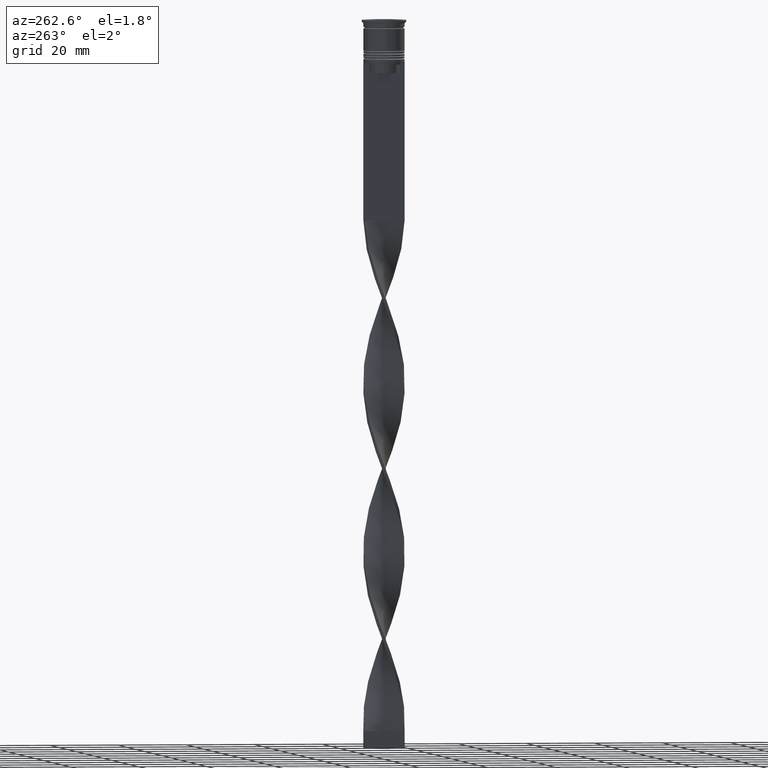
[diagram: clean part render]
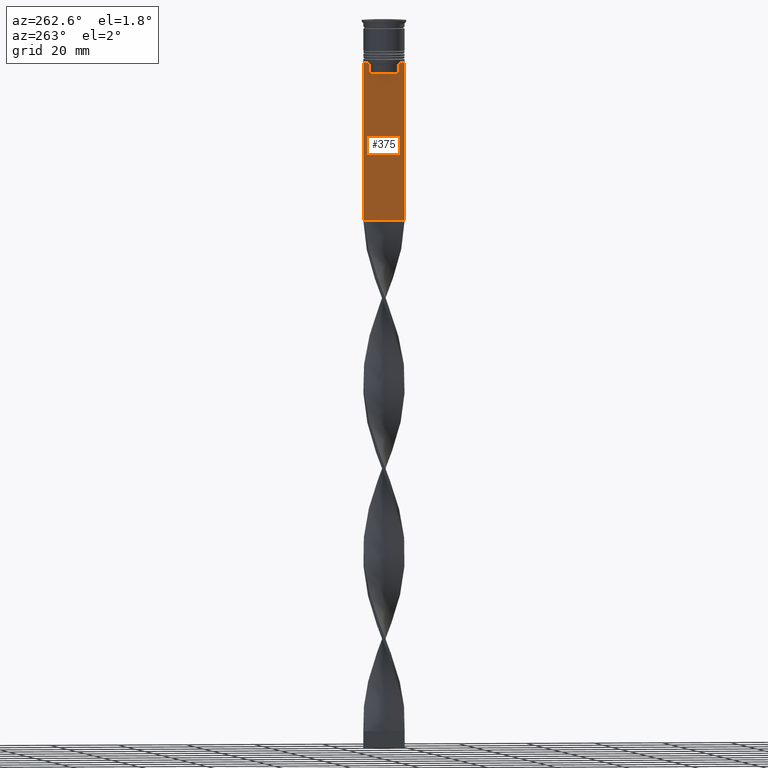
[diagram: same view with one face highlighted and labeled with its STEP entity id]
A machine part, auxiliary view. The second image highlights one B-rep face of the part: STEP entity #375.
In plain terms, the highlighted planar face has unit normal (-1, 0, 0).
Its self-contained STEP definition (entity closure, byte-faithful):
#12 = CARTESIAN_POINT ( 'NONE',  ( -0.4999999999999997780, -6.000000000000000000, -58.50000000000000000 ) ) ;
#54 = LINE ( 'NONE', #1692, #780 ) ;
#58 = CARTESIAN_POINT ( 'NONE',  ( -0.4999999999999997780, 4.874423042781576676, -12.50000000000000000 ) ) ;
#65 = VERTEX_POINT ( 'NONE', #684 ) ;
#144 = B_SPLINE_CURVE_WITH_KNOTS ( 'NONE', 3,
 ( #2092, #3273, #875, #2981 ),
 .UNSPECIFIED., .F., .F.,
 ( 4, 4 ),
 ( 0.02089901220910806920, 0.02161421017310284978 ),
 .UNSPECIFIED. ) ;
#161 = VECTOR ( 'NONE', #3073, 1000.000000000000000 ) ;
#188 = CARTESIAN_POINT ( 'NONE',  ( -0.4999999999999997780, -6.000000000000000000, -12.50000000000000000 ) ) ;
#216 = VECTOR ( 'NONE', #1211, 1000.000000000000000 ) ;
#222 = DIRECTION ( 'NONE',  ( 0.000000000000000000, 0.000000000000000000, -1.000000000000000000 ) ) ;
#248 = LINE ( 'NONE', #188, #2351 ) ;
#278 = CARTESIAN_POINT ( 'NONE',  ( -0.4999999999999997780, -6.000000000000000000, -12.50000000000000000 ) ) ;
#315 = LINE ( 'NONE', #12, #216 ) ;
#322 = LINE ( 'NONE', #2399, #3666 ) ;
#324 = EDGE_CURVE ( 'NONE', #3401, #1583, #144, .T. ) ;
#375 = ADVANCED_FACE ( 'NONE', ( #2663 ), #2679, .T. ) ;
#536 = VERTEX_POINT ( 'NONE', #2113 ) ;
#639 = DIRECTION ( 'NONE',  ( 0.000000000000000000, -1.000000000000000000, 0.000000000000000000 ) ) ;
#684 = CARTESIAN_POINT ( 'NONE',  ( -0.4999999999999997780, 5.878775382679627626, -12.50000000000000000 ) ) ;
#710 = VECTOR ( 'NONE', #3485, 1000.000000000000000 ) ;
#780 = VECTOR ( 'NONE', #1119, 1000.000000000000000 ) ;
#840 = DIRECTION ( 'NONE',  ( 0.000000000000000000, 0.000000000000000000, 1.000000000000000000 ) ) ;
#875 = CARTESIAN_POINT ( 'NONE',  ( -0.4999999999999997780, -4.706831372970964544, -12.66671687695981596 ) ) ;
#934 = LINE ( 'NONE', #2134, #3357 ) ;
#947 = EDGE_CURVE ( 'NONE', #65, #3657, #1490, .T. ) ;
#951 = CARTESIAN_POINT ( 'NONE',  ( -0.4999999999999997780, 6.000000000000000888, -58.50000000000000000 ) ) ;
#960 = LINE ( 'NONE', #2163, #710 ) ;
#1097 = CARTESIAN_POINT ( 'NONE',  ( -0.4999999999999997780, -4.874423042781576676, -12.50000000000000000 ) ) ;
#1098 = EDGE_CURVE ( 'NONE', #2601, #3401, #2029, .T. ) ;
#1119 = DIRECTION ( 'NONE',  ( 0.000000000000000000, -1.000000000000000000, 0.000000000000000000 ) ) ;
#1190 = CARTESIAN_POINT ( 'NONE',  ( -0.4999999999999997780, -4.371498598878878816, -13.00000000000000178 ) ) ;
#1199 = VECTOR ( 'NONE', #1733, 1000.000000000000000 ) ;
#1211 = DIRECTION ( 'NONE',  ( 0.000000000000000000, 1.000000000000000000, 0.000000000000000000 ) ) ;
#1212 = VECTOR ( 'NONE', #1802, 1000.000000000000000 ) ;
#1220 = CARTESIAN_POINT ( 'NONE',  ( -0.4999999999999997780, 6.000000000000001776, -12.50000000000000000 ) ) ;
#1276 = EDGE_CURVE ( 'NONE', #2633, #2322, #315, .T. ) ;
#1298 = LINE ( 'NONE', #2495, #161 ) ;
#1309 = CARTESIAN_POINT ( 'NONE',  ( -0.4999999999999997780, -6.000000000000000000, -12.50000000000000000 ) ) ;
#1327 = EDGE_CURVE ( 'NONE', #1672, #2322, #960, .T. ) ;
#1329 = VECTOR ( 'NONE', #1505, 1000.000000000000000 ) ;
#1438 = ORIENTED_EDGE ( 'NONE', *, *, #3700, .F. ) ;
#1472 = VERTEX_POINT ( 'NONE', #1309 ) ;
#1490 = LINE ( 'NONE', #3842, #1329 ) ;
#1505 = DIRECTION ( 'NONE',  ( 0.000000000000000000, -1.000000000000000000, 0.000000000000000000 ) ) ;
#1517 = ORIENTED_EDGE ( 'NONE', *, *, #3695, .F. ) ;
#1565 = EDGE_CURVE ( 'NONE', #3509, #2954, #322, .T. ) ;
#1583 = VERTEX_POINT ( 'NONE', #1097 ) ;
#1672 = VERTEX_POINT ( 'NONE', #1220 ) ;
#1692 = CARTESIAN_POINT ( 'NONE',  ( -0.4999999999999997780, -6.000000000000000000, -12.50000000000000000 ) ) ;
#1714 = DIRECTION ( 'NONE',  ( 0.000000000000000000, -1.000000000000000000, 0.000000000000000000 ) ) ;
#1733 = DIRECTION ( 'NONE',  ( -0.000000000000000000, -0.000000000000000000, 1.000000000000000000 ) ) ;
#1742 = DIRECTION ( 'NONE',  ( -1.000000000000000000, 0.000000000000000000, 0.000000000000000000 ) ) ;
#1750 = CARTESIAN_POINT ( 'NONE',  ( -0.4999999999999997780, -4.371498598878878816, 0.000000000000000000 ) ) ;
#1802 = DIRECTION ( 'NONE',  ( 0.000000000000000000, -1.000000000000000000, 0.000000000000000000 ) ) ;
#1874 = CARTESIAN_POINT ( 'NONE',  ( -0.4999999999999997780, 4.874423042781576676, -12.50000000000000000 ) ) ;
#1942 = EDGE_CURVE ( 'NONE', #1583, #536, #54, .T. ) ;
#1971 = ORIENTED_EDGE ( 'NONE', *, *, #3013, .F. ) ;
#2015 = ORIENTED_EDGE ( 'NONE', *, *, #324, .F. ) ;
#2029 = LINE ( 'NONE', #1750, #1199 ) ;
#2092 = CARTESIAN_POINT ( 'NONE',  ( -0.4999999999999997780, -4.371498598878878816, -13.00000000000000178 ) ) ;
#2113 = CARTESIAN_POINT ( 'NONE',  ( -0.4999999999999997780, -5.878775382679627626, -12.50000000000000000 ) ) ;
#2127 = CARTESIAN_POINT ( 'NONE',  ( -0.4999999999999997780, -6.000000000000000000, -58.50000000000000000 ) ) ;
#2134 = CARTESIAN_POINT ( 'NONE',  ( -0.4999999999999997780, 4.399999999999999467, -15.50000000000000000 ) ) ;
#2163 = CARTESIAN_POINT ( 'NONE',  ( -0.4999999999999997780, 6.000000000000000888, -0.4584054212077061097 ) ) ;
#2316 = EDGE_CURVE ( 'NONE', #2954, #2601, #934, .T. ) ;
#2322 = VERTEX_POINT ( 'NONE', #951 ) ;
#2351 = VECTOR ( 'NONE', #1714, 1000.000000000000000 ) ;
#2399 = CARTESIAN_POINT ( 'NONE',  ( -0.4999999999999997780, 4.371498598878878816, 0.000000000000000000 ) ) ;
#2495 = CARTESIAN_POINT ( 'NONE',  ( -0.4999999999999997780, -6.000000000000000000, -0.4584054212077061097 ) ) ;
#2517 = AXIS2_PLACEMENT_3D ( 'NONE', #2962, #1742, #840 ) ;
#2539 = ORIENTED_EDGE ( 'NONE', *, *, #1327, .T. ) ;
#2557 = CARTESIAN_POINT ( 'NONE',  ( -0.4999999999999997780, 4.706831415367290106, -12.66671683478478982 ) ) ;
#2601 = VERTEX_POINT ( 'NONE', #2606 ) ;
#2606 = CARTESIAN_POINT ( 'NONE',  ( -0.4999999999999997780, -4.371498598878878816, -15.50000000000000000 ) ) ;
#2633 = VERTEX_POINT ( 'NONE', #2127 ) ;
#2663 = FACE_OUTER_BOUND ( 'NONE', #2860, .T. ) ;
#2679 = PLANE ( 'NONE',  #2517 ) ;
#2741 = ORIENTED_EDGE ( 'NONE', *, *, #1276, .F. ) ;
#2758 = ORIENTED_EDGE ( 'NONE', *, *, #947, .F. ) ;
#2786 = ORIENTED_EDGE ( 'NONE', *, *, #1565, .F. ) ;
#2856 = B_SPLINE_CURVE_WITH_KNOTS ( 'NONE', 3,
 ( #58, #2557, #2859, #3766 ),
 .UNSPECIFIED., .F., .F.,
 ( 4, 4 ),
 ( 0.008336552452178418518, 0.009045730124312837891 ),
 .UNSPECIFIED. ) ;
#2859 = CARTESIAN_POINT ( 'NONE',  ( -0.4999999999999997780, 4.539195634199897356, -12.83338923751318816 ) ) ;
#2860 = EDGE_LOOP ( 'NONE', ( #1438, #2758, #3030, #2539, #2741, #1517, #1971, #3670, #2015, #3004, #3737, #2786 ) ) ;
#2878 = CARTESIAN_POINT ( 'NONE',  ( -0.4999999999999997780, 4.371498598878878816, -15.50000000000000000 ) ) ;
#2936 = LINE ( 'NONE', #278, #1212 ) ;
#2954 = VERTEX_POINT ( 'NONE', #2878 ) ;
#2962 = CARTESIAN_POINT ( 'NONE',  ( -0.4999999999999997780, -6.000000000000000000, -0.4584054212077061097 ) ) ;
#2981 = CARTESIAN_POINT ( 'NONE',  ( -0.4999999999999997780, -4.874423042781576676, -12.50000000000000000 ) ) ;
#3004 = ORIENTED_EDGE ( 'NONE', *, *, #1098, .F. ) ;
#3013 = EDGE_CURVE ( 'NONE', #536, #1472, #248, .T. ) ;
#3030 = ORIENTED_EDGE ( 'NONE', *, *, #3399, .F. ) ;
#3073 = DIRECTION ( 'NONE',  ( 0.000000000000000000, 0.000000000000000000, -1.000000000000000000 ) ) ;
#3273 = CARTESIAN_POINT ( 'NONE',  ( -0.4999999999999997780, -4.539195586926424220, -12.83338928448044136 ) ) ;
#3357 = VECTOR ( 'NONE', #639, 1000.000000000000000 ) ;
#3399 = EDGE_CURVE ( 'NONE', #1672, #65, #2936, .T. ) ;
#3401 = VERTEX_POINT ( 'NONE', #1190 ) ;
#3485 = DIRECTION ( 'NONE',  ( 0.000000000000000000, 0.000000000000000000, -1.000000000000000000 ) ) ;
#3509 = VERTEX_POINT ( 'NONE', #3549 ) ;
#3549 = CARTESIAN_POINT ( 'NONE',  ( -0.4999999999999997780, 4.371498598878878816, -13.00000000000000178 ) ) ;
#3657 = VERTEX_POINT ( 'NONE', #1874 ) ;
#3666 = VECTOR ( 'NONE', #222, 1000.000000000000000 ) ;
#3670 = ORIENTED_EDGE ( 'NONE', *, *, #1942, .F. ) ;
#3695 = EDGE_CURVE ( 'NONE', #1472, #2633, #1298, .T. ) ;
#3700 = EDGE_CURVE ( 'NONE', #3657, #3509, #2856, .T. ) ;
#3737 = ORIENTED_EDGE ( 'NONE', *, *, #2316, .F. ) ;
#3766 = CARTESIAN_POINT ( 'NONE',  ( -0.4999999999999997780, 4.371498598878878816, -13.00000000000000178 ) ) ;
#3842 = CARTESIAN_POINT ( 'NONE',  ( -0.4999999999999997780, -6.000000000000000000, -12.50000000000000000 ) ) ;